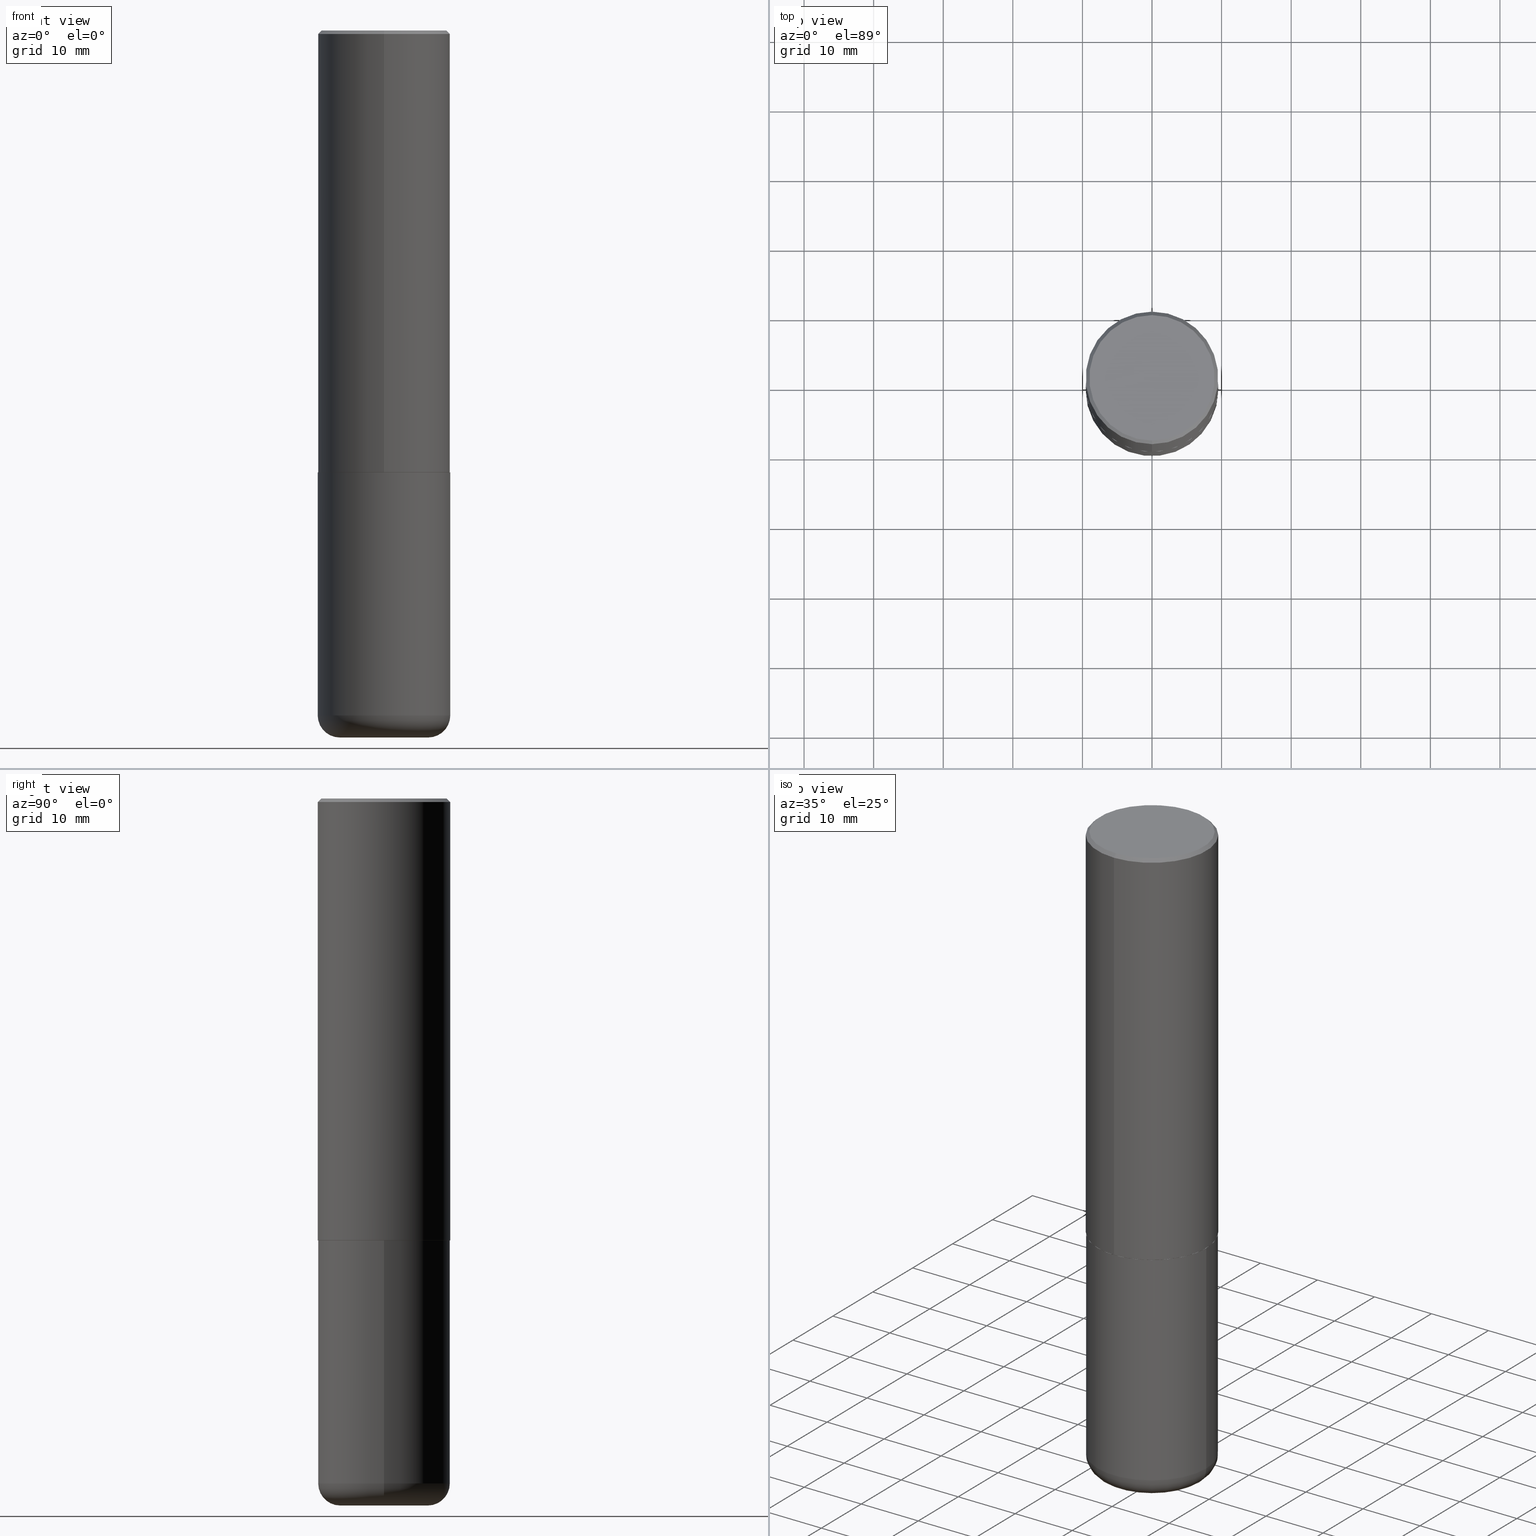
[diagram: canonical four-view strip — front | top / right | iso, engineering-drawing reading convention]
A machine part, canonical four-view strip (front | top / right | iso — engineering-drawing reading convention). The complete STEP part file that produces these views, byte-faithful:
ISO-10303-21;
HEADER;
FILE_DESCRIPTION (( 'STEP AP203' ),
    '1' );
FILE_NAME ('38300.STEP',
    '2024-03-02T21:34:07',
    ( '' ),
    ( '' ),
    'SwSTEP 2.0',
    'SolidWorks 2023',
    '' );
FILE_SCHEMA (( 'CONFIG_CONTROL_DESIGN' ));
ENDSEC;

DATA;
#1 = FACE_OUTER_BOUND ( 'NONE', #17, .T. ) ;
#2 = CIRCLE ( 'NONE', #275, 0.3750000000000000555 ) ;
#3 = AXIS2_PLACEMENT_3D ( 'NONE', #289, #34, #101 ) ;
#4 = DIRECTION ( 'NONE',  ( 2.444465131706345255E-29, -3.492918657822378473E-15, -1.000000000000000000 ) ) ;
#5 = ORIENTED_EDGE ( 'NONE', *, *, #345, .T. ) ;
#6 = DIRECTION ( 'NONE',  ( 2.444465131706344694E-29, -3.492918657822378868E-15, -1.000000000000000000 ) ) ;
#7 = VERTEX_POINT ( 'NONE', #39 ) ;
#8 = COORDINATED_UNIVERSAL_TIME_OFFSET ( 5, 0, .BEHIND. ) ;
#9 = CC_DESIGN_DATE_AND_TIME_ASSIGNMENT ( #203, #137, ( #37 ) ) ;
#10 = CARTESIAN_POINT ( 'NONE',  ( -0.2500000000000000555, -1.152726172244457105E-14, -4.000000000000000000 ) ) ;
#11 = DIRECTION ( 'NONE',  ( 0.000000000000000000, 0.000000000000000000, 1.000000000000000000 ) ) ;
#12 = VERTEX_POINT ( 'NONE', #144 ) ;
#13 = VERTEX_POINT ( 'NONE', #76 ) ;
#14 = APPROVAL_STATUS ( 'not_yet_approved' ) ;
#15 = ORIENTED_EDGE ( 'NONE', *, *, #354, .F. ) ;
#16 = ADVANCED_FACE ( 'NONE', ( #305 ), #106, .T. ) ;
#17 = EDGE_LOOP ( 'NONE', ( #340, #159, #194, #188 ) ) ;
#18 =( GEOMETRIC_REPRESENTATION_CONTEXT ( 3 ) GLOBAL_UNCERTAINTY_ASSIGNED_CONTEXT ( ( #313 ) ) GLOBAL_UNIT_ASSIGNED_CONTEXT ( ( #297, #134, #176 ) ) REPRESENTATION_CONTEXT ( 'NONE', 'WORKASPACE' ) );
#19 = DIRECTION ( 'NONE',  ( 1.000000000000000000, -6.982962677686263555E-15, 0.000000000000000000 ) ) ;
#20 = DIRECTION ( 'NONE',  ( -2.445468806185136597E-29, 3.491481338843145583E-15, 1.000000000000000000 ) ) ;
#21 = CARTESIAN_POINT ( 'NONE',  ( 0.000000000000000000, 0.000000000000000000, 0.000000000000000000 ) ) ;
#22 = APPROVAL_PERSON_ORGANIZATION ( #268, #395, #192 ) ;
#23 = DIRECTION ( 'NONE',  ( -6.982962677686265922E-15, -1.000000000000000000, 3.492918657822378079E-15 ) ) ;
#24 = DIRECTION ( 'NONE',  ( -2.445468806185136597E-29, 3.491481338843145583E-15, 1.000000000000000000 ) ) ;
#25 = EDGE_CURVE ( 'NONE', #404, #343, #83, .T. ) ;
#26 = DIRECTION ( 'NONE',  ( 6.982962677686265922E-15, 1.000000000000000000, -3.492918657822378868E-15 ) ) ;
#27 = ORIENTED_EDGE ( 'NONE', *, *, #408, .F. ) ;
#28 = AXIS2_PLACEMENT_3D ( 'NONE', #31, #326, #163 ) ;
#29 = DIRECTION ( 'NONE',  ( -2.445468806185136597E-29, 3.491481338843145583E-15, 1.000000000000000000 ) ) ;
#30 = ORIENTED_EDGE ( 'NONE', *, *, #33, .T. ) ;
#31 = CARTESIAN_POINT ( 'NONE',  ( 9.476191623967404313E-29, -1.352949018801718908E-14, -3.875000000000000000 ) ) ;
#32 = ORIENTED_EDGE ( 'NONE', *, *, #157, .T. ) ;
#33 = EDGE_CURVE ( 'NONE', #142, #244, #126, .T. ) ;
#34 = DIRECTION ( 'NONE',  ( -2.445468806185136597E-29, 3.491481338843145583E-15, 1.000000000000000000 ) ) ;
#35 = AXIS2_PLACEMENT_3D ( 'NONE', #86, #152, #182 ) ;
#36 = VERTEX_POINT ( 'NONE', #269 ) ;
#37 = PRODUCT_DEFINITION ( 'UNKNOWN', '', #267, #125 ) ;
#38 = CARTESIAN_POINT ( 'NONE',  ( 0.000000000000000000, 0.000000000000000000, 0.000000000000000000 ) ) ;
#39 = CARTESIAN_POINT ( 'NONE',  ( -0.3749999999999999445, -1.086495492891681496E-14, -3.875000000000000000 ) ) ;
#40 = DATE_AND_TIME ( #238, #311 ) ;
#41 = DIRECTION ( 'NONE',  ( -6.982962677686266711E-15, -1.000000000000000000, 3.491481338843145583E-15 ) ) ;
#42 = CALENDAR_DATE ( 2024, 2, 3 ) ;
#43 = AXIS2_PLACEMENT_3D ( 'NONE', #405, #54, #23 ) ;
#44 = AXIS2_PLACEMENT_3D ( 'NONE', #99, #61, #360 ) ;
#45 = ORIENTED_EDGE ( 'NONE', *, *, #89, .F. ) ;
#46 = ORIENTED_EDGE ( 'NONE', *, *, #215, .F. ) ;
#47 = ADVANCED_FACE ( 'NONE', ( #237 ), #277, .T. ) ;
#48 =( LENGTH_UNIT ( ) NAMED_UNIT ( * ) SI_UNIT ( $, .METRE. ) );
#49 = DIRECTION ( 'NONE',  ( 1.000000000000000000, -6.982962677686266711E-15, 0.000000000000000000 ) ) ;
#50 = DIRECTION ( 'NONE',  ( -6.982962677686266711E-15, -1.000000000000000000, 2.921762560068730595E-15 ) ) ;
#51 = AXIS2_PLACEMENT_3D ( 'NONE', #347, #411, #50 ) ;
#52 = AXIS2_PLACEMENT_3D ( 'NONE', #353, #29, #316 ) ;
#53 = CC_DESIGN_DATE_AND_TIME_ASSIGNMENT ( #40, #170, ( #276 ) ) ;
#54 = DIRECTION ( 'NONE',  ( -2.444465131706345255E-29, 3.492918657822378473E-15, 1.000000000000000000 ) ) ;
#55 = CARTESIAN_POINT ( 'NONE',  ( -0.3750000000000000555, -8.464561508462150527E-15, -2.499999999999999556 ) ) ;
#56 = CARTESIAN_POINT ( 'NONE',  ( 0.000000000000000000, 0.000000000000000000, 0.000000000000000000 ) ) ;
#57 = CLOSED_SHELL ( 'NONE', ( #140, #154, #416, #295, #72, #247, #105, #319 ) ) ;
#58 = CARTESIAN_POINT ( 'NONE',  ( 6.111162829265863557E-29, -8.732296644555947170E-15, -2.500000000000000000 ) ) ;
#59 = PRODUCT ( '38300', '38300', '', ( #363 ) ) ;
#60 = DIRECTION ( 'NONE',  ( -2.444465131706345255E-29, 3.492918657822378473E-15, 1.000000000000000000 ) ) ;
#61 = DIRECTION ( 'NONE',  ( 2.444465131706345255E-29, -3.492918657822378473E-15, -1.000000000000000000 ) ) ;
#62 = CLOSED_SHELL ( 'NONE', ( #47, #385, #302, #255, #16, #122 ) ) ;
#63 = AXIS2_PLACEMENT_3D ( 'NONE', #38, #11, #207 ) ;
#64 = DIRECTION ( 'NONE',  ( -4.937700262164378437E-15, -0.7071067811865208164, 0.7071067811865739960 ) ) ;
#65 = EDGE_LOOP ( 'NONE', ( #45, #46 ) ) ;
#66 = DIRECTION ( 'NONE',  ( -1.000000000000000000, 6.982962677686265922E-15, -4.876176775795935793E-29 ) ) ;
#67 = ORIENTED_EDGE ( 'NONE', *, *, #210, .F. ) ;
#68 = FACE_OUTER_BOUND ( 'NONE', #196, .T. ) ;
#69 = ORIENTED_EDGE ( 'NONE', *, *, #197, .F. ) ;
#70 = PERSON_AND_ORGANIZATION ( #341, #346 ) ;
#71 = VERTEX_POINT ( 'NONE', #10 ) ;
#72 = ADVANCED_FACE ( 'NONE', ( #135 ), #205, .T. ) ;
#73 = CALENDAR_DATE ( 2024, 2, 3 ) ;
#74 = VERTEX_POINT ( 'NONE', #119 ) ;
#75 = CALENDAR_DATE ( 2024, 2, 3 ) ;
#76 = CARTESIAN_POINT ( 'NONE',  ( 2.664535259100408040E-15, 0.3749999999999915623, -2.499000000000000998 ) ) ;
#77 = APPROVAL_STATUS ( 'not_yet_approved' ) ;
#78 = ORIENTED_EDGE ( 'NONE', *, *, #25, .T. ) ;
#79 = CARTESIAN_POINT ( 'NONE',  ( 0.2500000000000000555, -1.527523085743875734E-14, -3.875000000000000000 ) ) ;
#80 = CARTESIAN_POINT ( 'NONE',  ( 6.111162829265863557E-29, -8.732296644555947170E-15, -2.500000000000000000 ) ) ;
#81 = EDGE_CURVE ( 'NONE', #236, #102, #413, .T. ) ;
#82 = DIRECTION ( 'NONE',  ( -6.982962677686266711E-15, -1.000000000000000000, 3.492918657822378473E-15 ) ) ;
#83 = CIRCLE ( 'NONE', #114, 0.3549999999999999267 ) ;
#84 = LOCAL_TIME ( 16, 34, 7.000000000000000000, #270 ) ;
#85 = DIRECTION ( 'NONE',  ( -2.444465131706345255E-29, 3.492918657822378473E-15, 1.000000000000000000 ) ) ;
#86 = CARTESIAN_POINT ( 'NONE',  ( 6.111162829265863557E-29, -8.732296644555947170E-15, -2.500000000000000000 ) ) ;
#87 = ADVANCED_BREP_SHAPE_REPRESENTATION ( '38300', ( #138, #147, #63 ), #18 ) ;
#88 = CARTESIAN_POINT ( 'NONE',  ( 4.888930263412711914E-31, -6.985837315644786578E-17, -0.02000000000000008715 ) ) ;
#89 = EDGE_CURVE ( 'NONE', #364, #12, #173, .T. ) ;
#90 = DIMENSIONAL_EXPONENTS ( 1.000000000000000000, 0.000000000000000000, 0.000000000000000000, 0.000000000000000000, 0.000000000000000000, 0.000000000000000000, 0.000000000000000000 ) ;
#91 = CARTESIAN_POINT ( 'NONE',  ( -2.611628041454602471E-15, -0.3740000000000087699, -2.499999999999999112 ) ) ;
#92 = CARTESIAN_POINT ( 'NONE',  ( -2.504081769186608216E-15, -0.3549999999999999267, 1.308792571606178433E-15 ) ) ;
#93 = PRODUCT_RELATED_PRODUCT_CATEGORY ( 'detail', '', ( #59 ) ) ;
#94 = LINE ( 'NONE', #127, #241 ) ;
#95 = ORIENTED_EDGE ( 'NONE', *, *, #222, .F. ) ;
#96 = AXIS2_PLACEMENT_3D ( 'NONE', #246, #149, #183 ) ;
#97 = PRODUCT_DEFINITION_SHAPE ( 'NONE', 'NONE',  #37 ) ;
#98 = VECTOR ( 'NONE', #189, 39.37007874015748143 ) ;
#99 = CARTESIAN_POINT ( 'NONE',  ( 4.888930263412711914E-31, -6.985837315644786578E-17, -0.02000000000000008715 ) ) ;
#100 = ORIENTED_EDGE ( 'NONE', *, *, #362, .T. ) ;
#101 = DIRECTION ( 'NONE',  ( 1.000000000000000000, -6.982962677686266711E-15, 4.876176775795935793E-29 ) ) ;
#102 = VERTEX_POINT ( 'NONE', #55 ) ;
#103 = PERSON_AND_ORGANIZATION ( #341, #346 ) ;
#104 = ORIENTED_EDGE ( 'NONE', *, *, #332, .F. ) ;
#105 = ADVANCED_FACE ( 'NONE', ( #219 ), #252, .F. ) ;
#106 = TOROIDAL_SURFACE ( 'NONE', #299, 0.2500000000000000555, 0.1249999999999999167 ) ;
#107 = AXIS2_PLACEMENT_3D ( 'NONE', #257, #60, #415 ) ;
#108 = PERSON_AND_ORGANIZATION_ROLE ( 'creator' ) ;
#109 = ORIENTED_EDGE ( 'NONE', *, *, #403, .F. ) ;
#110 = DIRECTION ( 'NONE',  ( -2.444465131706345255E-29, 3.492918657822378473E-15, 1.000000000000000000 ) ) ;
#111 = PERSON_AND_ORGANIZATION ( #341, #346 ) ;
#112 = VERTEX_POINT ( 'NONE', #280 ) ;
#113 = APPROVAL_ROLE ( '' ) ;
#114 = AXIS2_PLACEMENT_3D ( 'NONE', #172, #110, #245 ) ;
#115 = VECTOR ( 'NONE', #291, 39.37007874015748143 ) ;
#116 = DIRECTION ( 'NONE',  ( 1.000000000000000000, -6.982962677686263555E-15, 4.883557194083111219E-29 ) ) ;
#117 = CALENDAR_DATE ( 2024, 2, 3 ) ;
#118 = ORIENTED_EDGE ( 'NONE', *, *, #362, .F. ) ;
#119 = CARTESIAN_POINT ( 'NONE',  ( 2.618611004132350411E-15, 0.3749999999999999445, -0.02000000000000139513 ) ) ;
#120 = DIRECTION ( 'NONE',  ( 2.438088387897960049E-29, -3.491481338843145188E-15, -1.000000000000000000 ) ) ;
#121 = FACE_OUTER_BOUND ( 'NONE', #330, .T. ) ;
#122 = ADVANCED_FACE ( 'NONE', ( #376 ), #412, .T. ) ;
#123 = FACE_OUTER_BOUND ( 'NONE', #204, .T. ) ;
#124 = DIRECTION ( 'NONE',  ( -1.000000000000000000, 6.982962677686265922E-15, -4.876176775795935793E-29 ) ) ;
#125 = DESIGN_CONTEXT ( 'detailed design', #262, 'design' ) ;
#126 = CIRCLE ( 'NONE', #318, 0.1249999999999999306 ) ;
#127 = CARTESIAN_POINT ( 'NONE',  ( 2.618611004132350411E-15, 0.3749999999999999445, -0.02000000000000139513 ) ) ;
#128 = CC_DESIGN_PERSON_AND_ORGANIZATION_ASSIGNMENT ( #111, #242, ( #276 ) ) ;
#129 = CARTESIAN_POINT ( 'NONE',  ( 2.664535259100376486E-15, 0.3750000000000001665, -1.309844496683392470E-15 ) ) ;
#130 = DIRECTION ( 'NONE',  ( 1.000000000000000000, -6.982962677686263555E-15, 4.883557194083111219E-29 ) ) ;
#131 = AXIS2_PLACEMENT_3D ( 'NONE', #88, #309, #312 ) ;
#132 = DIRECTION ( 'NONE',  ( 4.937700262164544887E-15, 0.7071067811865446862, -0.7071067811865503483 ) ) ;
#133 = APPROVAL_DATE_TIME ( #141, #279 ) ;
#134 =( NAMED_UNIT ( * ) PLANE_ANGLE_UNIT ( ) SI_UNIT ( $, .RADIAN. ) );
#135 = FACE_OUTER_BOUND ( 'NONE', #369, .T. ) ;
#136 = VECTOR ( 'NONE', #193, 39.37007874015748143 ) ;
#137 = DATE_TIME_ROLE ( 'creation_date' ) ;
#138 = MANIFOLD_SOLID_BREP ( 'Body-Move/Copy2[1]', #62 ) ;
#139 = ORIENTED_EDGE ( 'NONE', *, *, #314, .T. ) ;
#140 = ADVANCED_FACE ( 'NONE', ( #123 ), #401, .T. ) ;
#141 = DATE_AND_TIME ( #42, #191 ) ;
#142 = VERTEX_POINT ( 'NONE', #181 ) ;
#143 = COORDINATED_UNIVERSAL_TIME_OFFSET ( 5, 0, .BEHIND. ) ;
#144 = CARTESIAN_POINT ( 'NONE',  ( 2.660982545421636724E-15, 0.3739999999999912839, -2.500000000000001332 ) ) ;
#145 = CIRCLE ( 'NONE', #43, 0.3549999999999999267 ) ;
#146 = ORIENTED_EDGE ( 'NONE', *, *, #345, .F. ) ;
#147 = MANIFOLD_SOLID_BREP ( 'Body-Move/Copy2[2]', #57 ) ;
#148 = EDGE_CURVE ( 'NONE', #244, #7, #165, .T. ) ;
#149 = DIRECTION ( 'NONE',  ( -2.444465131706345255E-29, 3.492918657822378473E-15, 1.000000000000000000 ) ) ;
#150 = DIRECTION ( 'NONE',  ( -2.445468806185136597E-29, 3.491481338843145583E-15, 1.000000000000000000 ) ) ;
#151 = CIRCLE ( 'NONE', #35, 0.3739999999999999991 ) ;
#152 = DIRECTION ( 'NONE',  ( -2.444465131706345255E-29, 3.492918657822378473E-15, 1.000000000000000000 ) ) ;
#153 = CONICAL_SURFACE ( 'NONE', #288, 0.3750000000000000555, 0.7853981633974477239 ) ;
#154 = ADVANCED_FACE ( 'NONE', ( #121 ), #348, .T. ) ;
#155 = CARTESIAN_POINT ( 'NONE',  ( -0.2500000000000000555, -1.175313334861693862E-14, -3.875000000000000000 ) ) ;
#156 = CARTESIAN_POINT ( 'NONE',  ( 6.111162829265863557E-29, -8.732296644555947170E-15, -2.500000000000000000 ) ) ;
#157 = EDGE_CURVE ( 'NONE', #343, #404, #145, .T. ) ;
#158 = PLANE ( 'NONE',  #220 ) ;
#159 = ORIENTED_EDGE ( 'NONE', *, *, #380, .T. ) ;
#160 = CC_DESIGN_APPROVAL ( #279, ( #267 ) ) ;
#161 = DIRECTION ( 'NONE',  ( -2.445468806185136597E-29, 3.491481338843145583E-15, 1.000000000000000000 ) ) ;
#162 = EDGE_LOOP ( 'NONE', ( #118, #233, #5, #208 ) ) ;
#163 = DIRECTION ( 'NONE',  ( 1.000000000000000000, -6.982962677686263555E-15, 0.000000000000000000 ) ) ;
#164 = FACE_OUTER_BOUND ( 'NONE', #325, .T. ) ;
#165 = CIRCLE ( 'NONE', #235, 0.3749999999999999445 ) ;
#166 = LINE ( 'NONE', #386, #378 ) ;
#167 = EDGE_LOOP ( 'NONE', ( #67, #174, #30, #27 ) ) ;
#168 = PERSON_AND_ORGANIZATION ( #341, #346 ) ;
#169 = ORIENTED_EDGE ( 'NONE', *, *, #285, .T. ) ;
#170 = DATE_TIME_ROLE ( 'classification_date' ) ;
#171 = CC_DESIGN_PERSON_AND_ORGANIZATION_ASSIGNMENT ( #103, #200, ( #267 ) ) ;
#172 = CARTESIAN_POINT ( 'NONE',  ( -1.681949631662511627E-45, 2.403353262744440834E-31, 6.880644807923424831E-17 ) ) ;
#173 = CIRCLE ( 'NONE', #51, 0.3739999999999999991 ) ;
#174 = ORIENTED_EDGE ( 'NONE', *, *, #332, .T. ) ;
#175 = ORIENTED_EDGE ( 'NONE', *, *, #367, .T. ) ;
#176 =( NAMED_UNIT ( * ) SI_UNIT ( $, .STERADIAN. ) SOLID_ANGLE_UNIT ( ) );
#177 = DIRECTION ( 'NONE',  ( 1.000000000000000000, -6.982962677686266711E-15, 4.876176775795935793E-29 ) ) ;
#178 = EDGE_CURVE ( 'NONE', #36, #13, #281, .T. ) ;
#179 = AXIS2_PLACEMENT_3D ( 'NONE', #56, #217, #410 ) ;
#180 = CIRCLE ( 'NONE', #213, 0.2500000000000000555 ) ;
#181 = CARTESIAN_POINT ( 'NONE',  ( 0.2500000000000000555, -1.571166602479415059E-14, -4.000000000000000000 ) ) ;
#182 = DIRECTION ( 'NONE',  ( -6.982962677686266711E-15, -1.000000000000000000, 2.921762560068730595E-15 ) ) ;
#183 = DIRECTION ( 'NONE',  ( -6.982962677686266711E-15, -1.000000000000000000, 2.913971193241878794E-15 ) ) ;
#184 = CIRCLE ( 'NONE', #131, 0.3750000000000000555 ) ;
#185 = CARTESIAN_POINT ( 'NONE',  ( 9.781875224740546387E-29, -1.396592535537258233E-14, -4.000000000000000000 ) ) ;
#186 = DIRECTION ( 'NONE',  ( -6.982962677686266711E-15, -1.000000000000000000, 2.921762560068730595E-15 ) ) ;
#187 = LINE ( 'NONE', #91, #322 ) ;
#188 = ORIENTED_EDGE ( 'NONE', *, *, #375, .F. ) ;
#189 = DIRECTION ( 'NONE',  ( -4.851104656540961119E-15, -0.7071067811865495711, -0.7071067811865454633 ) ) ;
#190 = APPROVAL_PERSON_ORGANIZATION ( #372, #279, #113 ) ;
#191 = LOCAL_TIME ( 16, 34, 7.000000000000000000, #342 ) ;
#192 = APPROVAL_ROLE ( '' ) ;
#193 = DIRECTION ( 'NONE',  ( -2.445468806185136877E-29, 3.491481338843145188E-15, 1.000000000000000000 ) ) ;
#194 = ORIENTED_EDGE ( 'NONE', *, *, #222, .T. ) ;
#195 = FACE_OUTER_BOUND ( 'NONE', #239, .T. ) ;
#196 = EDGE_LOOP ( 'NONE', ( #301, #388 ) ) ;
#197 = EDGE_CURVE ( 'NONE', #74, #112, #338, .T. ) ;
#198 = CARTESIAN_POINT ( 'NONE',  ( 2.478951750578623815E-15, 0.3549999999999999267, -1.205582899487326820E-15 ) ) ;
#199 = ORIENTED_EDGE ( 'NONE', *, *, #33, .F. ) ;
#200 = PERSON_AND_ORGANIZATION_ROLE ( 'design_supplier' ) ;
#201 = CARTESIAN_POINT ( 'NONE',  ( 9.476191623967404313E-29, -1.352949018801718908E-14, -3.875000000000000000 ) ) ;
#202 = CC_DESIGN_PERSON_AND_ORGANIZATION_ASSIGNMENT ( #398, #370, ( #267 ) ) ;
#203 = DATE_AND_TIME ( #73, #293 ) ;
#204 = EDGE_LOOP ( 'NONE', ( #333, #169, #266, #15 ) ) ;
#205 = CYLINDRICAL_SURFACE ( 'NONE', #179, 0.3750000000000001665 ) ;
#206 = TOROIDAL_SURFACE ( 'NONE', #339, 0.2500000000000000555, 0.1249999999999999167 ) ;
#207 = DIRECTION ( 'NONE',  ( 1.000000000000000000, 0.000000000000000000, 0.000000000000000000 ) ) ;
#208 = ORIENTED_EDGE ( 'NONE', *, *, #228, .F. ) ;
#209 = ORIENTED_EDGE ( 'NONE', *, *, #314, .F. ) ;
#210 = EDGE_CURVE ( 'NONE', #71, #7, #320, .T. ) ;
#211 = CARTESIAN_POINT ( 'NONE',  ( 4.888930263412711914E-31, -6.985837315644786578E-17, -0.02000000000000008715 ) ) ;
#212 = DATE_AND_TIME ( #117, #409 ) ;
#213 = AXIS2_PLACEMENT_3D ( 'NONE', #231, #390, #358 ) ;
#214 = DIRECTION ( 'NONE',  ( -1.000000000000000000, 7.105427357601000281E-15, 0.000000000000000000 ) ) ;
#215 = EDGE_CURVE ( 'NONE', #12, #364, #151, .T. ) ;
#216 = APPROVAL_DATE_TIME ( #212, #395 ) ;
#217 = DIRECTION ( 'NONE',  ( -2.444465131706345255E-29, 3.492918657822378473E-15, 1.000000000000000000 ) ) ;
#218 = DIRECTION ( 'NONE',  ( -2.444465131706345255E-29, 3.492918657822378473E-15, 1.000000000000000000 ) ) ;
#219 = FACE_OUTER_BOUND ( 'NONE', #65, .T. ) ;
#220 = AXIS2_PLACEMENT_3D ( 'NONE', #198, #6, #26 ) ;
#221 = LINE ( 'NONE', #229, #136 ) ;
#222 = EDGE_CURVE ( 'NONE', #112, #74, #184, .T. ) ;
#223 = FACE_OUTER_BOUND ( 'NONE', #162, .T. ) ;
#224 = CARTESIAN_POINT ( 'NONE',  ( 2.548781377355487113E-15, 0.3549999999999999267, -1.171179675447709813E-15 ) ) ;
#225 = AXIS2_PLACEMENT_3D ( 'NONE', #21, #278, #82 ) ;
#226 = ORIENTED_EDGE ( 'NONE', *, *, #210, .T. ) ;
#227 = AXIS2_PLACEMENT_3D ( 'NONE', #391, #254, #66 ) ;
#228 = EDGE_CURVE ( 'NONE', #102, #236, #2, .T. ) ;
#229 = CARTESIAN_POINT ( 'NONE',  ( -0.3749999999999999445, 2.664535259100375303E-15, -1.844600658845589318E-29 ) ) ;
#230 = ORIENTED_EDGE ( 'NONE', *, *, #354, .T. ) ;
#231 = CARTESIAN_POINT ( 'NONE',  ( 9.781875224740546387E-29, -1.396592535537258233E-14, -4.000000000000000000 ) ) ;
#232 = APPROVAL_DATE_TIME ( #336, #307 ) ;
#233 = ORIENTED_EDGE ( 'NONE', *, *, #408, .T. ) ;
#234 = CC_DESIGN_PERSON_AND_ORGANIZATION_ASSIGNMENT ( #168, #108, ( #37 ) ) ;
#235 = AXIS2_PLACEMENT_3D ( 'NONE', #308, #20, #19 ) ;
#236 = VERTEX_POINT ( 'NONE', #250 ) ;
#237 = FACE_OUTER_BOUND ( 'NONE', #260, .T. ) ;
#238 = CALENDAR_DATE ( 2024, 2, 3 ) ;
#239 = EDGE_LOOP ( 'NONE', ( #78, #32 ) ) ;
#240 = VECTOR ( 'NONE', #284, 39.37007874015748143 ) ;
#241 = VECTOR ( 'NONE', #132, 39.37007874015748143 ) ;
#242 = PERSON_AND_ORGANIZATION_ROLE ( 'classification_officer' ) ;
#243 = EDGE_CURVE ( 'NONE', #36, #112, #283, .T. ) ;
#244 = VERTEX_POINT ( 'NONE', #315 ) ;
#245 = DIRECTION ( 'NONE',  ( -6.982962677686265922E-15, -1.000000000000000000, 3.492918657822378079E-15 ) ) ;
#246 = CARTESIAN_POINT ( 'NONE',  ( 6.108718364134156127E-29, -8.728803725898123939E-15, -2.498999999999999666 ) ) ;
#247 = ADVANCED_FACE ( 'NONE', ( #379 ), #253, .T. ) ;
#248 = SHAPE_DEFINITION_REPRESENTATION ( #97, #87 ) ;
#249 = CC_DESIGN_APPROVAL ( #307, ( #37 ) ) ;
#250 = CARTESIAN_POINT ( 'NONE',  ( 0.3750000000000000555, -1.134731435124021180E-14, -2.499999999999999556 ) ) ;
#251 = DIRECTION ( 'NONE',  ( -2.444465131706344694E-29, 3.492918657822378868E-15, 1.000000000000000000 ) ) ;
#252 = PLANE ( 'NONE',  #407 ) ;
#253 = CONICAL_SURFACE ( 'NONE', #389, 0.3739999999999999991, 0.7853981633974141952 ) ;
#254 = DIRECTION ( 'NONE',  ( 2.438088387897960049E-29, -3.491481338843145188E-15, -1.000000000000000000 ) ) ;
#255 = ADVANCED_FACE ( 'NONE', ( #223 ), #294, .T. ) ;
#256 = CONICAL_SURFACE ( 'NONE', #44, 0.3750000000000000555, 0.7853981633974477239 ) ;
#257 = CARTESIAN_POINT ( 'NONE',  ( 6.108718364134156127E-29, -8.728803725898123939E-15, -2.498999999999999666 ) ) ;
#258 = ORIENTED_EDGE ( 'NONE', *, *, #148, .F. ) ;
#259 = PLANE ( 'NONE',  #227 ) ;
#260 = EDGE_LOOP ( 'NONE', ( #366, #100, #296, #146 ) ) ;
#261 = CARTESIAN_POINT ( 'NONE',  ( 4.888930263412711914E-31, -6.985837315644786578E-17, -0.02000000000000008715 ) ) ;
#262 = APPLICATION_CONTEXT ( 'configuration controlled 3d designs of mechanical parts and assemblies' ) ;
#263 = CARTESIAN_POINT ( 'NONE',  ( 9.476191623967404313E-29, -1.352949018801718908E-14, -3.875000000000000000 ) ) ;
#264 = EDGE_LOOP ( 'NONE', ( #139, #226, #258, #199 ) ) ;
#265 = PERSON_AND_ORGANIZATION ( #341, #346 ) ;
#266 = ORIENTED_EDGE ( 'NONE', *, *, #178, .F. ) ;
#267 = PRODUCT_DEFINITION_FORMATION_WITH_SPECIFIED_SOURCE ( 'ANY', '', #59, .NOT_KNOWN. ) ;
#268 = PERSON_AND_ORGANIZATION ( #341, #346 ) ;
#269 = CARTESIAN_POINT ( 'NONE',  ( -2.618611004132290852E-15, -0.3750000000000090483, -2.498999999999998778 ) ) ;
#270 = COORDINATED_UNIVERSAL_TIME_OFFSET ( 5, 0, .BEHIND. ) ;
#271 = ORIENTED_EDGE ( 'NONE', *, *, #243, .F. ) ;
#272 = CC_DESIGN_PERSON_AND_ORGANIZATION_ASSIGNMENT ( #70, #303, ( #59 ) ) ;
#273 = APPROVAL_ROLE ( '' ) ;
#274 = ORIENTED_EDGE ( 'NONE', *, *, #197, .T. ) ;
#275 = AXIS2_PLACEMENT_3D ( 'NONE', #382, #150, #406 ) ;
#276 = SECURITY_CLASSIFICATION ( '', '', #334 ) ;
#277 = CYLINDRICAL_SURFACE ( 'NONE', #306, 0.3749999999999999445 ) ;
#278 = DIRECTION ( 'NONE',  ( -2.444465131706345255E-29, 3.492918657822378473E-15, 1.000000000000000000 ) ) ;
#279 = APPROVAL ( #77, 'UNSPECIFIED' ) ;
#280 = CARTESIAN_POINT ( 'NONE',  ( -2.572686749164323547E-15, -0.3750000000000001110, -0.01999999999999877570 ) ) ;
#281 = CIRCLE ( 'NONE', #96, 0.3750000000000002776 ) ;
#282 = CIRCLE ( 'NONE', #107, 0.3750000000000002776 ) ;
#283 = LINE ( 'NONE', #349, #240 ) ;
#284 = DIRECTION ( 'NONE',  ( -2.444465131706345255E-29, 3.492918657822378868E-15, 1.000000000000000000 ) ) ;
#285 = EDGE_CURVE ( 'NONE', #12, #13, #166, .T. ) ;
#286 = DIRECTION ( 'NONE',  ( -6.982962677686265922E-15, -1.000000000000000000, 3.492918657822378868E-15 ) ) ;
#287 = CARTESIAN_POINT ( 'NONE',  ( 0.3749999999999999445, -2.618611004132349622E-15, 1.828566290923475642E-29 ) ) ;
#288 = AXIS2_PLACEMENT_3D ( 'NONE', #261, #4, #300 ) ;
#289 = CARTESIAN_POINT ( 'NONE',  ( 0.000000000000000000, 0.000000000000000000, 0.000000000000000000 ) ) ;
#290 = DIRECTION ( 'NONE',  ( 5.024295867787889629E-15, 0.7071067811865257013, 0.7071067811865691111 ) ) ;
#291 = DIRECTION ( 'NONE',  ( -2.444465131706345255E-29, 3.492918657822378868E-15, 1.000000000000000000 ) ) ;
#292 = ORIENTED_EDGE ( 'NONE', *, *, #243, .T. ) ;
#293 = LOCAL_TIME ( 16, 34, 7.000000000000000000, #8 ) ;
#294 = CYLINDRICAL_SURFACE ( 'NONE', #3, 0.3749999999999999445 ) ;
#295 = ADVANCED_FACE ( 'NONE', ( #164 ), #256, .T. ) ;
#296 = ORIENTED_EDGE ( 'NONE', *, *, #81, .F. ) ;
#297 =( CONVERSION_BASED_UNIT ( 'INCH', #368 ) LENGTH_UNIT ( ) NAMED_UNIT ( #90 ) );
#298 = ORIENTED_EDGE ( 'NONE', *, *, #215, .T. ) ;
#299 = AXIS2_PLACEMENT_3D ( 'NONE', #201, #304, #116 ) ;
#300 = DIRECTION ( 'NONE',  ( 6.982962677686265922E-15, 1.000000000000000000, -3.494488891895536035E-15 ) ) ;
#301 = ORIENTED_EDGE ( 'NONE', *, *, #81, .T. ) ;
#302 = ADVANCED_FACE ( 'NONE', ( #68 ), #259, .F. ) ;
#303 = PERSON_AND_ORGANIZATION_ROLE ( 'design_owner' ) ;
#304 = DIRECTION ( 'NONE',  ( -2.445468806185136597E-29, 3.491481338843145583E-15, 1.000000000000000000 ) ) ;
#305 = FACE_OUTER_BOUND ( 'NONE', #167, .T. ) ;
#306 = AXIS2_PLACEMENT_3D ( 'NONE', #373, #337, #177 ) ;
#307 = APPROVAL ( #14, 'UNSPECIFIED' ) ;
#308 = CARTESIAN_POINT ( 'NONE',  ( 9.476191623967404313E-29, -1.352949018801718908E-14, -3.875000000000000000 ) ) ;
#309 = DIRECTION ( 'NONE',  ( -2.444465131706345255E-29, 3.492918657822378473E-15, 1.000000000000000000 ) ) ;
#310 = DIRECTION ( 'NONE',  ( 1.000000000000000000, -6.982962677686264344E-15, 0.000000000000000000 ) ) ;
#311 = LOCAL_TIME ( 16, 34, 7.000000000000000000, #143 ) ;
#312 = DIRECTION ( 'NONE',  ( -6.982962677686265922E-15, -1.000000000000000000, 3.494488891895536035E-15 ) ) ;
#313 = UNCERTAINTY_MEASURE_WITH_UNIT (LENGTH_MEASURE( 1.000000000000000082E-05 ), #297, 'distance_accuracy_value', 'NONE');
#314 = EDGE_CURVE ( 'NONE', #142, #71, #351, .T. ) ;
#315 = CARTESIAN_POINT ( 'NONE',  ( 0.3749999999999999445, -1.614810119214953752E-14, -3.875000000000000000 ) ) ;
#316 = DIRECTION ( 'NONE',  ( 1.000000000000000000, -6.982962677686269077E-15, 0.000000000000000000 ) ) ;
#317 = COORDINATED_UNIVERSAL_TIME_OFFSET ( 5, 0, .BEHIND. ) ;
#318 = AXIS2_PLACEMENT_3D ( 'NONE', #79, #41, #49 ) ;
#319 = ADVANCED_FACE ( 'NONE', ( #195 ), #158, .F. ) ;
#320 = CIRCLE ( 'NONE', #383, 0.1249999999999999306 ) ;
#321 = DIRECTION ( 'NONE',  ( -6.982962677686266711E-15, -1.000000000000000000, 2.921762560068730595E-15 ) ) ;
#322 = VECTOR ( 'NONE', #64, 39.37007874015748854 ) ;
#323 = EDGE_LOOP ( 'NONE', ( #397, #298, #230, #327 ) ) ;
#324 = CARTESIAN_POINT ( 'NONE',  ( -2.611628041454602471E-15, -0.3740000000000087699, -2.499999999999999112 ) ) ;
#325 = EDGE_LOOP ( 'NONE', ( #418, #361, #400, #274 ) ) ;
#326 = DIRECTION ( 'NONE',  ( -2.445468806185136597E-29, 3.491481338843145583E-15, 1.000000000000000000 ) ) ;
#327 = ORIENTED_EDGE ( 'NONE', *, *, #367, .F. ) ;
#328 = FACE_OUTER_BOUND ( 'NONE', #264, .T. ) ;
#329 = AXIS2_PLACEMENT_3D ( 'NONE', #80, #218, #186 ) ;
#330 = EDGE_LOOP ( 'NONE', ( #394, #371, #95, #271 ) ) ;
#331 = APPROVAL_PERSON_ORGANIZATION ( #265, #307, #273 ) ;
#332 = EDGE_CURVE ( 'NONE', #71, #142, #180, .T. ) ;
#333 = ORIENTED_EDGE ( 'NONE', *, *, #89, .T. ) ;
#334 = SECURITY_CLASSIFICATION_LEVEL ( 'unclassified' ) ;
#335 = APPLICATION_CONTEXT ( 'configuration controlled 3d designs of mechanical parts and assemblies' ) ;
#336 = DATE_AND_TIME ( #75, #84 ) ;
#337 = DIRECTION ( 'NONE',  ( -2.445468806185136597E-29, 3.491481338843145583E-15, 1.000000000000000000 ) ) ;
#338 = CIRCLE ( 'NONE', #393, 0.3750000000000000555 ) ;
#339 = AXIS2_PLACEMENT_3D ( 'NONE', #263, #161, #130 ) ;
#340 = ORIENTED_EDGE ( 'NONE', *, *, #157, .F. ) ;
#341 = PERSON ( 'UNSPECIFIED', 'UNSPECIFIED', 'UNSPECIFIED', ('UNSPECIFIED'), ('UNSPECIFIED'), ('UNSPECIFIED') ) ;
#342 = COORDINATED_UNIVERSAL_TIME_OFFSET ( 5, 0, .BEHIND. ) ;
#343 = VERTEX_POINT ( 'NONE', #92 ) ;
#344 = DIRECTION ( 'NONE',  ( 7.105427357601001859E-15, 1.000000000000000000, -3.491481338843145583E-15 ) ) ;
#345 = EDGE_CURVE ( 'NONE', #244, #236, #387, .T. ) ;
#346 = ORGANIZATION ( 'UNSPECIFIED', 'UNSPECIFIED', '' ) ;
#347 = CARTESIAN_POINT ( 'NONE',  ( 6.111162829265863557E-29, -8.732296644555947170E-15, -2.500000000000000000 ) ) ;
#348 = CYLINDRICAL_SURFACE ( 'NONE', #225, 0.3750000000000001665 ) ;
#349 = CARTESIAN_POINT ( 'NONE',  ( -2.618611004132351200E-15, -0.3750000000000001665, 1.309844496683392470E-15 ) ) ;
#350 = AXIS2_PLACEMENT_3D ( 'NONE', #185, #120, #124 ) ;
#351 = CIRCLE ( 'NONE', #52, 0.2500000000000000555 ) ;
#352 = CARTESIAN_POINT ( 'NONE',  ( 6.113672015462840371E-29, -8.728703347107863365E-15, -2.499999999999999556 ) ) ;
#353 = CARTESIAN_POINT ( 'NONE',  ( 9.781875224740546387E-29, -1.396592535537258233E-14, -4.000000000000000000 ) ) ;
#354 = EDGE_CURVE ( 'NONE', #364, #36, #187, .T. ) ;
#355 = LINE ( 'NONE', #359, #98 ) ;
#356 = AXIS2_PLACEMENT_3D ( 'NONE', #352, #24, #310 ) ;
#357 = VECTOR ( 'NONE', #384, 39.37007874015748143 ) ;
#358 = DIRECTION ( 'NONE',  ( 1.000000000000000000, -6.982962677686269077E-15, 0.000000000000000000 ) ) ;
#359 = CARTESIAN_POINT ( 'NONE',  ( -2.572686749164323547E-15, -0.3750000000000001110, -0.01999999999999877570 ) ) ;
#360 = DIRECTION ( 'NONE',  ( 6.982962677686265922E-15, 1.000000000000000000, -3.494488891895536035E-15 ) ) ;
#361 = ORIENTED_EDGE ( 'NONE', *, *, #25, .F. ) ;
#362 = EDGE_CURVE ( 'NONE', #7, #102, #221, .T. ) ;
#363 = MECHANICAL_CONTEXT ( 'NONE', #335, 'mechanical' ) ;
#364 = VERTEX_POINT ( 'NONE', #324 ) ;
#365 = APPLICATION_PROTOCOL_DEFINITION ( 'international standard', 'config_control_design', 1994, #262 ) ;
#366 = ORIENTED_EDGE ( 'NONE', *, *, #148, .T. ) ;
#367 = EDGE_CURVE ( 'NONE', #13, #36, #282, .T. ) ;
#368 = LENGTH_MEASURE_WITH_UNIT ( LENGTH_MEASURE( 0.02539999999999999897 ), #48 );
#369 = EDGE_LOOP ( 'NONE', ( #109, #175, #292, #69 ) ) ;
#370 = PERSON_AND_ORGANIZATION_ROLE ( 'creator' ) ;
#371 = ORIENTED_EDGE ( 'NONE', *, *, #403, .T. ) ;
#372 = PERSON_AND_ORGANIZATION ( #341, #346 ) ;
#373 = CARTESIAN_POINT ( 'NONE',  ( 0.000000000000000000, 0.000000000000000000, 0.000000000000000000 ) ) ;
#374 = DIRECTION ( 'NONE',  ( -2.444465131706345255E-29, 3.492918657822378473E-15, 1.000000000000000000 ) ) ;
#375 = EDGE_CURVE ( 'NONE', #404, #74, #94, .T. ) ;
#376 = FACE_OUTER_BOUND ( 'NONE', #399, .T. ) ;
#377 = CC_DESIGN_SECURITY_CLASSIFICATION ( #276, ( #267 ) ) ;
#378 = VECTOR ( 'NONE', #290, 39.37007874015748854 ) ;
#379 = FACE_OUTER_BOUND ( 'NONE', #323, .T. ) ;
#380 = EDGE_CURVE ( 'NONE', #343, #112, #355, .T. ) ;
#381 = DIRECTION ( 'NONE',  ( -6.982962677686265922E-15, -1.000000000000000000, 3.494488891895536035E-15 ) ) ;
#382 = CARTESIAN_POINT ( 'NONE',  ( 6.113672015462840371E-29, -8.728703347107863365E-15, -2.499999999999999556 ) ) ;
#383 = AXIS2_PLACEMENT_3D ( 'NONE', #155, #344, #214 ) ;
#384 = DIRECTION ( 'NONE',  ( -2.445468806185136877E-29, 3.491481338843145188E-15, 1.000000000000000000 ) ) ;
#385 = ADVANCED_FACE ( 'NONE', ( #328 ), #206, .T. ) ;
#386 = CARTESIAN_POINT ( 'NONE',  ( 2.657429831742835431E-15, 0.3739999999999912839, -2.500000000000001332 ) ) ;
#387 = LINE ( 'NONE', #287, #357 ) ;
#388 = ORIENTED_EDGE ( 'NONE', *, *, #228, .T. ) ;
#389 = AXIS2_PLACEMENT_3D ( 'NONE', #58, #85, #321 ) ;
#390 = DIRECTION ( 'NONE',  ( -2.445468806185136597E-29, 3.491481338843145583E-15, 1.000000000000000000 ) ) ;
#391 = CARTESIAN_POINT ( 'NONE',  ( 6.113672015462840371E-29, -8.728703347107863365E-15, -2.499999999999999556 ) ) ;
#392 = APPLICATION_PROTOCOL_DEFINITION ( 'international standard', 'config_control_design', 1994, #335 ) ;
#393 = AXIS2_PLACEMENT_3D ( 'NONE', #211, #374, #381 ) ;
#394 = ORIENTED_EDGE ( 'NONE', *, *, #178, .T. ) ;
#395 = APPROVAL ( #396, 'UNSPECIFIED' ) ;
#396 = APPROVAL_STATUS ( 'not_yet_approved' ) ;
#397 = ORIENTED_EDGE ( 'NONE', *, *, #285, .F. ) ;
#398 = PERSON_AND_ORGANIZATION ( #341, #346 ) ;
#399 = EDGE_LOOP ( 'NONE', ( #209, #104 ) ) ;
#400 = ORIENTED_EDGE ( 'NONE', *, *, #375, .T. ) ;
#401 = CONICAL_SURFACE ( 'NONE', #329, 0.3739999999999999991, 0.7853981633974141952 ) ;
#402 = CC_DESIGN_APPROVAL ( #395, ( #276 ) ) ;
#403 = EDGE_CURVE ( 'NONE', #13, #74, #417, .T. ) ;
#404 = VERTEX_POINT ( 'NONE', #224 ) ;
#405 = CARTESIAN_POINT ( 'NONE',  ( -1.681949631662511627E-45, 2.403353262744440834E-31, 6.880644807923424831E-17 ) ) ;
#406 = DIRECTION ( 'NONE',  ( 1.000000000000000000, -6.982962677686264344E-15, 0.000000000000000000 ) ) ;
#407 = AXIS2_PLACEMENT_3D ( 'NONE', #156, #251, #286 ) ;
#408 = EDGE_CURVE ( 'NONE', #7, #244, #414, .T. ) ;
#409 = LOCAL_TIME ( 16, 34, 7.000000000000000000, #317 ) ;
#410 = DIRECTION ( 'NONE',  ( -6.982962677686266711E-15, -1.000000000000000000, 3.492918657822378473E-15 ) ) ;
#411 = DIRECTION ( 'NONE',  ( -2.444465131706345255E-29, 3.492918657822378473E-15, 1.000000000000000000 ) ) ;
#412 = PLANE ( 'NONE',  #350 ) ;
#413 = CIRCLE ( 'NONE', #356, 0.3750000000000000555 ) ;
#414 = CIRCLE ( 'NONE', #28, 0.3749999999999999445 ) ;
#415 = DIRECTION ( 'NONE',  ( -6.982962677686266711E-15, -1.000000000000000000, 2.913971193241878794E-15 ) ) ;
#416 = ADVANCED_FACE ( 'NONE', ( #1 ), #153, .T. ) ;
#417 = LINE ( 'NONE', #129, #115 ) ;
#418 = ORIENTED_EDGE ( 'NONE', *, *, #380, .F. ) ;
ENDSEC;
END-ISO-10303-21;
